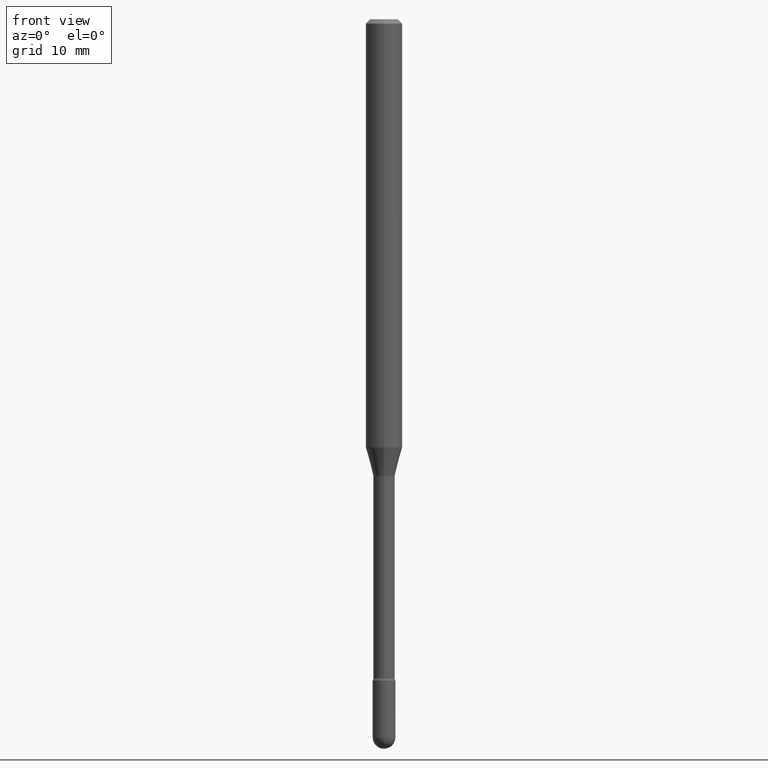
[diagram: clean part render]
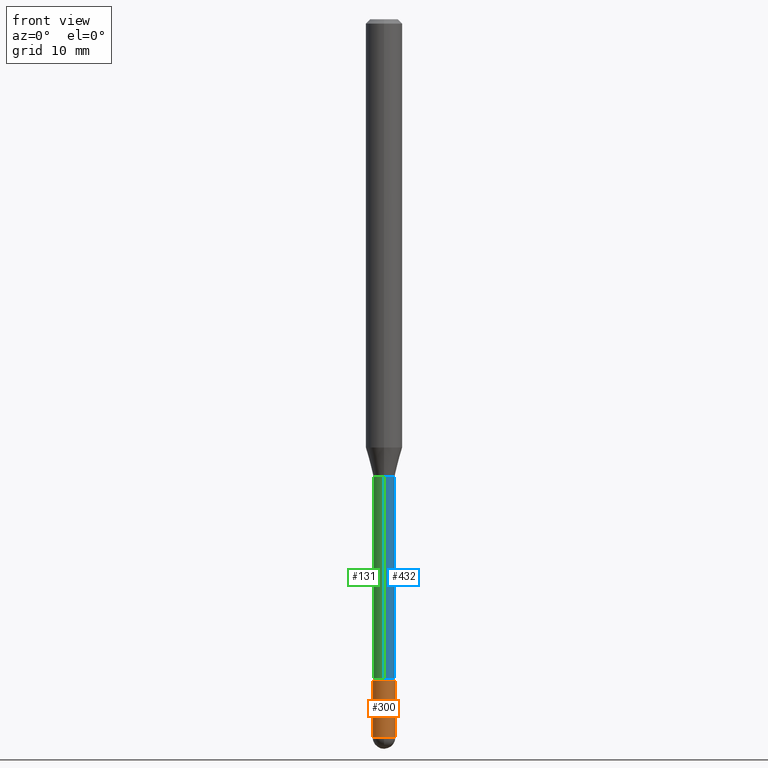
[diagram: same view with three faces highlighted in distinct colors, each labeled with its STEP entity id]
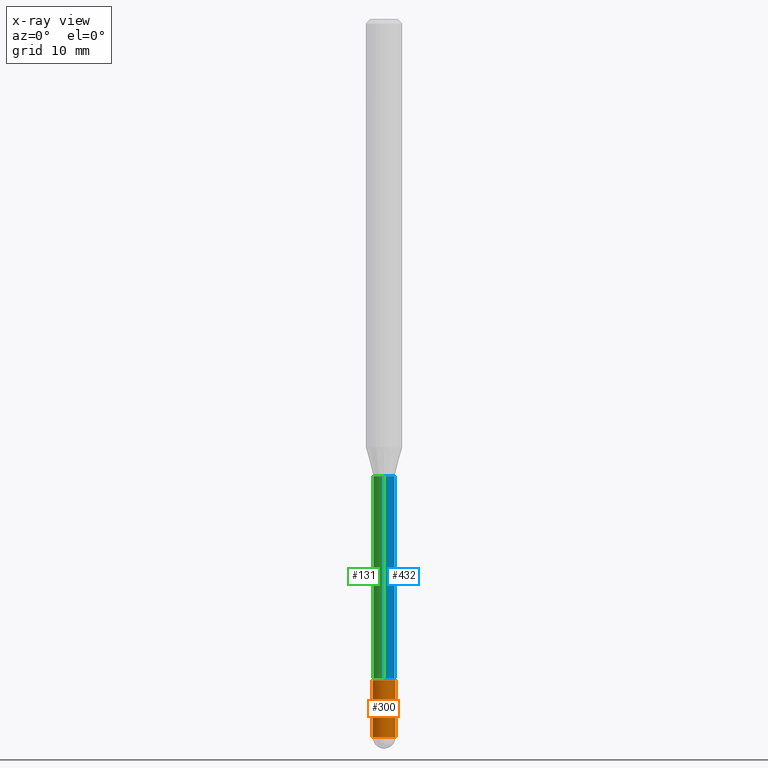
[diagram: x-ray of the same camera — body ghosted, the three highlighted faces saturated]
A machine part, front view with three faces highlighted in distinct colors.
The next image is the same camera in x-ray (body ghosted, the three faces saturated) — at least one of them is partly hidden behind the body in this view.
Their STEP definitions:

[orange] entity #300 — the highlighted cylindrical surface (edge-blend (fillet) strip) has radius 0.9906 mm, axis along (-0, 0, 1).
#20 = ORIENTED_EDGE ( 'NONE', *, *, #115, .F. ) ;
#25 = CARTESIAN_POINT ( 'NONE',  ( 0.03899999999999999994, -2.723355444297643682E-16, 1.901708942560414931E-30 ) ) ;
#27 = EDGE_CURVE ( 'NONE', #359, #190, #240, .T. ) ;
#40 = CARTESIAN_POINT ( 'NONE',  ( -0.03899999999999999994, -7.975004477409334639E-15, -2.266000000000000014 ) ) ;
#49 = AXIS2_PLACEMENT_3D ( 'NONE', #358, #411, #114 ) ;
#56 = FACE_OUTER_BOUND ( 'NONE', #503, .T. ) ;
#66 = EDGE_CURVE ( 'NONE', #417, #67, #89, .T. ) ;
#67 = VERTEX_POINT ( 'NONE', #318 ) ;
#77 = VERTEX_POINT ( 'NONE', #322 ) ;
#78 = DIRECTION ( 'NONE',  ( 1.000000000000000000, -6.982962677686258033E-15, 0.000000000000000000 ) ) ;
#86 = EDGE_CURVE ( 'NONE', #67, #77, #285, .T. ) ;
#89 = CIRCLE ( 'NONE', #49, 0.03900000000000000688 ) ;
#107 = DIRECTION ( 'NONE',  ( -2.445468806185136597E-29, 3.491481338843145583E-15, 1.000000000000000000 ) ) ;
#114 = DIRECTION ( 'NONE',  ( 1.000000000000000000, -6.982962677686282488E-15, 0.000000000000000000 ) ) ;
#115 = EDGE_CURVE ( 'NONE', #190, #77, #433, .T. ) ;
#124 = CARTESIAN_POINT ( 'NONE',  ( 5.541432314815520264E-29, -7.911696713818568140E-15, -2.266000000000000014 ) ) ;
#158 = ORIENTED_EDGE ( 'NONE', *, *, #66, .T. ) ;
#161 = CARTESIAN_POINT ( 'NONE',  ( -0.03899999999999999994, 2.771116669464390721E-16, -1.918384685199413078E-30 ) ) ;
#163 = DIRECTION ( 'NONE',  ( -2.445468806185136597E-29, 3.491481338843145583E-15, 1.000000000000000000 ) ) ;
#165 = CIRCLE ( 'NONE', #366, 0.03900000000000000688 ) ;
#184 = DIRECTION ( 'NONE',  ( -2.445468806185136877E-29, 3.491481338843145188E-15, 1.000000000000000000 ) ) ;
#190 = VERTEX_POINT ( 'NONE', #40 ) ;
#214 = CARTESIAN_POINT ( 'NONE',  ( -2.771116669463794638E-16, -0.03900000000000868744, -2.460999999999999854 ) ) ;
#233 = DIRECTION ( 'NONE',  ( 1.000000000000000000, -6.982962677686265922E-15, 4.876176775795935793E-29 ) ) ;
#240 = LINE ( 'NONE', #161, #416 ) ;
#261 = EDGE_CURVE ( 'NONE', #359, #417, #165, .T. ) ;
#264 = AXIS2_PLACEMENT_3D ( 'NONE', #124, #163, #78 ) ;
#285 = LINE ( 'NONE', #25, #530 ) ;
#296 = ORIENTED_EDGE ( 'NONE', *, *, #261, .T. ) ;
#300 = ADVANCED_FACE ( 'NONE', ( #56 ), #535, .T. ) ;
#308 = AXIS2_PLACEMENT_3D ( 'NONE', #497, #107, #233 ) ;
#318 = CARTESIAN_POINT ( 'NONE',  ( 0.03900000000000000688, -8.524451688785538770E-15, -2.460999999999999854 ) ) ;
#322 = CARTESIAN_POINT ( 'NONE',  ( 0.03899999999999999994, -8.184032258248332163E-15, -2.266000000000000014 ) ) ;
#356 = ORIENTED_EDGE ( 'NONE', *, *, #27, .F. ) ;
#358 = CARTESIAN_POINT ( 'NONE',  ( 6.018298732021620914E-29, -8.592535574892981353E-15, -2.460999999999999854 ) ) ;
#359 = VERTEX_POINT ( 'NONE', #399 ) ;
#366 = AXIS2_PLACEMENT_3D ( 'NONE', #431, #543, #367 ) ;
#367 = DIRECTION ( 'NONE',  ( 1.000000000000000000, -6.982962677686282488E-15, 0.000000000000000000 ) ) ;
#399 = CARTESIAN_POINT ( 'NONE',  ( -0.03900000000000000688, -7.975004477409334639E-15, -2.460999999999999854 ) ) ;
#411 = DIRECTION ( 'NONE',  ( -2.445468806185136597E-29, 3.491481338843145583E-15, 1.000000000000000000 ) ) ;
#416 = VECTOR ( 'NONE', #184, 39.37007874015748143 ) ;
#417 = VERTEX_POINT ( 'NONE', #214 ) ;
#421 = ORIENTED_EDGE ( 'NONE', *, *, #86, .T. ) ;
#431 = CARTESIAN_POINT ( 'NONE',  ( 6.018298732021620914E-29, -8.592535574892981353E-15, -2.460999999999999854 ) ) ;
#433 = CIRCLE ( 'NONE', #264, 0.03899999999999999994 ) ;
#497 = CARTESIAN_POINT ( 'NONE',  ( 0.000000000000000000, 0.000000000000000000, 0.000000000000000000 ) ) ;
#503 = EDGE_LOOP ( 'NONE', ( #356, #296, #158, #421, #20 ) ) ;
#511 = DIRECTION ( 'NONE',  ( -2.445468806185136877E-29, 3.491481338843145188E-15, 1.000000000000000000 ) ) ;
#530 = VECTOR ( 'NONE', #511, 39.37007874015748143 ) ;
#535 = CYLINDRICAL_SURFACE ( 'NONE', #308, 0.03899999999999999994 ) ;
#543 = DIRECTION ( 'NONE',  ( -2.445468806185136597E-29, 3.491481338843145583E-15, 1.000000000000000000 ) ) ;

[blue] entity #432 — the highlighted cylindrical surface (edge-blend (fillet) strip) has radius 0.9309 mm, axis along (-0, 0, 1).
#17 = VERTEX_POINT ( 'NONE', #469 ) ;
#21 = CARTESIAN_POINT ( 'NONE',  ( -2.559255821371468665E-16, -0.03665000000000794705, -2.257939137763241177 ) ) ;
#50 = AXIS2_PLACEMENT_3D ( 'NONE', #88, #212, #388 ) ;
#58 = AXIS2_PLACEMENT_3D ( 'NONE', #377, #475, #166 ) ;
#88 = CARTESIAN_POINT ( 'NONE',  ( -1.169113584055446105E-44, 1.669184350826100908E-30, 4.780733988912460139E-16 ) ) ;
#90 = AXIS2_PLACEMENT_3D ( 'NONE', #253, #557, #331 ) ;
#96 = DIRECTION ( 'NONE',  ( -2.445433460805834454E-29, 3.491531955438040460E-15, 1.000000000000000000 ) ) ;
#137 = EDGE_CURVE ( 'NONE', #17, #451, #293, .T. ) ;
#166 = DIRECTION ( 'NONE',  ( -6.982962677686265922E-15, -1.000000000000000000, 0.000000000000000000 ) ) ;
#191 = LINE ( 'NONE', #409, #476 ) ;
#194 = ORIENTED_EDGE ( 'NONE', *, *, #137, .F. ) ;
#195 = CIRCLE ( 'NONE', #58, 0.03665000000000006447 ) ;
#203 = EDGE_CURVE ( 'NONE', #313, #427, #195, .T. ) ;
#212 = DIRECTION ( 'NONE',  ( -2.445433460805834174E-29, 3.491531955438040854E-15, 1.000000000000000000 ) ) ;
#227 = CARTESIAN_POINT ( 'NONE',  ( 2.604139126560769297E-16, 0.03665000000000003672, 3.501087527244417361E-16 ) ) ;
#253 = CARTESIAN_POINT ( 'NONE',  ( 3.829487144042308608E-29, -5.467651011840191045E-15, -1.565974787463811246 ) ) ;
#258 = VECTOR ( 'NONE', #96, 39.37007874015748143 ) ;
#265 = EDGE_CURVE ( 'NONE', #313, #17, #191, .T. ) ;
#276 = LINE ( 'NONE', #227, #258 ) ;
#293 = CIRCLE ( 'NONE', #90, 0.03665000000000000202 ) ;
#313 = VERTEX_POINT ( 'NONE', #21 ) ;
#317 = DIRECTION ( 'NONE',  ( -2.445433460805834454E-29, 3.491531955438040460E-15, 1.000000000000000000 ) ) ;
#326 = ORIENTED_EDGE ( 'NONE', *, *, #355, .T. ) ;
#331 = DIRECTION ( 'NONE',  ( -6.982962677686265133E-15, -1.000000000000000000, 0.000000000000000000 ) ) ;
#341 = CYLINDRICAL_SURFACE ( 'NONE', #50, 0.03665000000000003672 ) ;
#355 = EDGE_CURVE ( 'NONE', #427, #451, #276, .T. ) ;
#365 = EDGE_LOOP ( 'NONE', ( #373, #326, #194, #559 ) ) ;
#373 = ORIENTED_EDGE ( 'NONE', *, *, #203, .T. ) ;
#377 = CARTESIAN_POINT ( 'NONE',  ( 5.521639919949304874E-29, -7.883666652934574778E-15, -2.257939137763241177 ) ) ;
#388 = DIRECTION ( 'NONE',  ( -6.982962677686265922E-15, -1.000000000000000000, 3.491531955438039671E-15 ) ) ;
#392 = CARTESIAN_POINT ( 'NONE',  ( 2.687627898013134923E-16, 0.03664999999999218189, -2.257939137763241177 ) ) ;
#409 = CARTESIAN_POINT ( 'NONE',  ( -2.559255821372018895E-16, -0.03665000000000003672, 6.060380450580503411E-16 ) ) ;
#423 = CARTESIAN_POINT ( 'NONE',  ( 2.604139126561321500E-16, 0.03664999999999453417, -1.565974787463811246 ) ) ;
#427 = VERTEX_POINT ( 'NONE', #392 ) ;
#432 = ADVANCED_FACE ( 'NONE', ( #479 ), #341, .T. ) ;
#451 = VERTEX_POINT ( 'NONE', #423 ) ;
#469 = CARTESIAN_POINT ( 'NONE',  ( -2.559255821371633339E-16, -0.03665000000000546987, -1.565974787463811246 ) ) ;
#475 = DIRECTION ( 'NONE',  ( -2.445433460805834174E-29, 3.491531955438040854E-15, 1.000000000000000000 ) ) ;
#476 = VECTOR ( 'NONE', #317, 39.37007874015748143 ) ;
#479 = FACE_OUTER_BOUND ( 'NONE', #365, .T. ) ;
#557 = DIRECTION ( 'NONE',  ( -2.445433460805834174E-29, 3.491531955438040854E-15, 1.000000000000000000 ) ) ;
#559 = ORIENTED_EDGE ( 'NONE', *, *, #265, .F. ) ;

[green] entity #131 — the highlighted cylindrical surface (edge-blend (fillet) strip) has radius 0.9309 mm, axis along (-0, 0, 1).
#17 = VERTEX_POINT ( 'NONE', #469 ) ;
#21 = CARTESIAN_POINT ( 'NONE',  ( -2.559255821371468665E-16, -0.03665000000000794705, -2.257939137763241177 ) ) ;
#68 = EDGE_CURVE ( 'NONE', #427, #313, #229, .T. ) ;
#96 = DIRECTION ( 'NONE',  ( -2.445433460805834454E-29, 3.491531955438040460E-15, 1.000000000000000000 ) ) ;
#99 = AXIS2_PLACEMENT_3D ( 'NONE', #271, #310, #393 ) ;
#116 = EDGE_LOOP ( 'NONE', ( #460, #442, #509, #319 ) ) ;
#131 = ADVANCED_FACE ( 'NONE', ( #553 ), #387, .T. ) ;
#178 = CIRCLE ( 'NONE', #99, 0.03665000000000000202 ) ;
#191 = LINE ( 'NONE', #409, #476 ) ;
#193 = DIRECTION ( 'NONE',  ( -6.982962677686265922E-15, -1.000000000000000000, 0.000000000000000000 ) ) ;
#227 = CARTESIAN_POINT ( 'NONE',  ( 2.604139126560769297E-16, 0.03665000000000003672, 3.501087527244417361E-16 ) ) ;
#228 = AXIS2_PLACEMENT_3D ( 'NONE', #277, #454, #193 ) ;
#229 = CIRCLE ( 'NONE', #228, 0.03665000000000006447 ) ;
#258 = VECTOR ( 'NONE', #96, 39.37007874015748143 ) ;
#265 = EDGE_CURVE ( 'NONE', #313, #17, #191, .T. ) ;
#271 = CARTESIAN_POINT ( 'NONE',  ( 3.829487144042308608E-29, -5.467651011840191045E-15, -1.565974787463811246 ) ) ;
#276 = LINE ( 'NONE', #227, #258 ) ;
#277 = CARTESIAN_POINT ( 'NONE',  ( 5.521639919949304874E-29, -7.883666652934574778E-15, -2.257939137763241177 ) ) ;
#310 = DIRECTION ( 'NONE',  ( -2.445433460805834174E-29, 3.491531955438040854E-15, 1.000000000000000000 ) ) ;
#313 = VERTEX_POINT ( 'NONE', #21 ) ;
#317 = DIRECTION ( 'NONE',  ( -2.445433460805834454E-29, 3.491531955438040460E-15, 1.000000000000000000 ) ) ;
#319 = ORIENTED_EDGE ( 'NONE', *, *, #539, .F. ) ;
#338 = AXIS2_PLACEMENT_3D ( 'NONE', #472, #422, #560 ) ;
#355 = EDGE_CURVE ( 'NONE', #427, #451, #276, .T. ) ;
#387 = CYLINDRICAL_SURFACE ( 'NONE', #338, 0.03665000000000003672 ) ;
#392 = CARTESIAN_POINT ( 'NONE',  ( 2.687627898013134923E-16, 0.03664999999999218189, -2.257939137763241177 ) ) ;
#393 = DIRECTION ( 'NONE',  ( -6.982962677686265133E-15, -1.000000000000000000, 0.000000000000000000 ) ) ;
#409 = CARTESIAN_POINT ( 'NONE',  ( -2.559255821372018895E-16, -0.03665000000000003672, 6.060380450580503411E-16 ) ) ;
#422 = DIRECTION ( 'NONE',  ( -2.445433460805834174E-29, 3.491531955438040854E-15, 1.000000000000000000 ) ) ;
#423 = CARTESIAN_POINT ( 'NONE',  ( 2.604139126561321500E-16, 0.03664999999999453417, -1.565974787463811246 ) ) ;
#427 = VERTEX_POINT ( 'NONE', #392 ) ;
#442 = ORIENTED_EDGE ( 'NONE', *, *, #68, .T. ) ;
#451 = VERTEX_POINT ( 'NONE', #423 ) ;
#454 = DIRECTION ( 'NONE',  ( -2.445433460805834174E-29, 3.491531955438040854E-15, 1.000000000000000000 ) ) ;
#460 = ORIENTED_EDGE ( 'NONE', *, *, #355, .F. ) ;
#469 = CARTESIAN_POINT ( 'NONE',  ( -2.559255821371633339E-16, -0.03665000000000546987, -1.565974787463811246 ) ) ;
#472 = CARTESIAN_POINT ( 'NONE',  ( -1.169113584055446105E-44, 1.669184350826100908E-30, 4.780733988912460139E-16 ) ) ;
#476 = VECTOR ( 'NONE', #317, 39.37007874015748143 ) ;
#509 = ORIENTED_EDGE ( 'NONE', *, *, #265, .T. ) ;
#539 = EDGE_CURVE ( 'NONE', #451, #17, #178, .T. ) ;
#553 = FACE_OUTER_BOUND ( 'NONE', #116, .T. ) ;
#560 = DIRECTION ( 'NONE',  ( -6.982962677686265922E-15, -1.000000000000000000, 3.491531955438039671E-15 ) ) ;